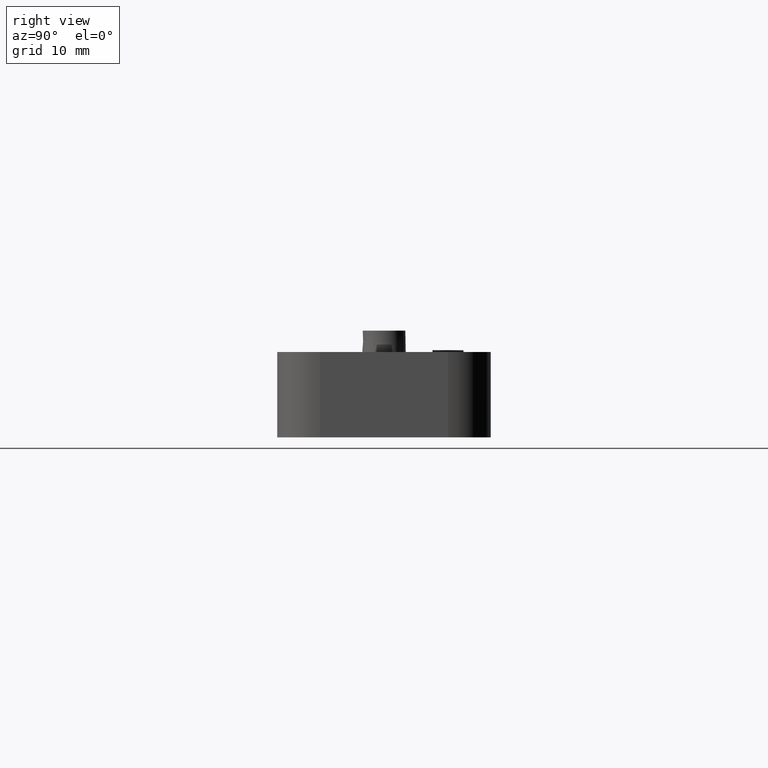
[diagram: clean part render]
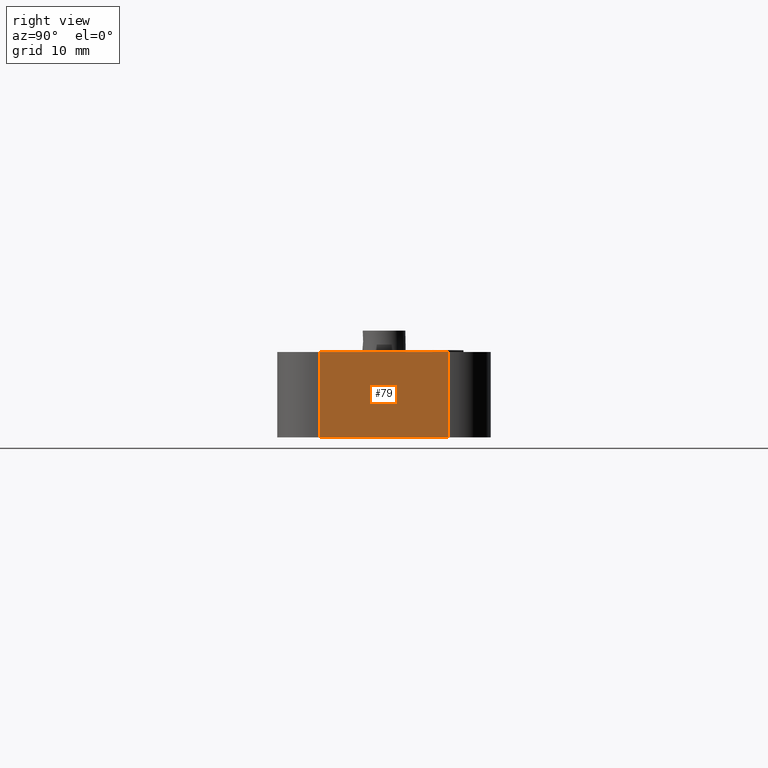
[diagram: same view with one face highlighted and labeled with its STEP entity id]
A machine part, right view. The second image highlights one B-rep face of the part: STEP entity #79.
In plain terms, the highlighted planar face has unit normal (1, 0, 0).
Its self-contained STEP definition (entity closure, byte-faithful):
#79 = ADVANCED_FACE( '', ( #525 ), #526, .T. );
#525 = FACE_OUTER_BOUND( '', #1461, .T. );
#526 = PLANE( '', #1462 );
#1461 = EDGE_LOOP( '', ( #2444, #2445, #2446, #2447 ) );
#1462 = AXIS2_PLACEMENT_3D( '', #2448, #2449, #2450 );
#2444 = ORIENTED_EDGE( '', *, *, #5922, .F. );
#2445 = ORIENTED_EDGE( '', *, *, #5923, .F. );
#2446 = ORIENTED_EDGE( '', *, *, #5894, .T. );
#2447 = ORIENTED_EDGE( '', *, *, #5924, .T. );
#2448 = CARTESIAN_POINT( '', ( 40.5000000000000, 7.50000000000012, 88.7139788967795 ) );
#2449 = DIRECTION( '', ( 1.00000000000000, 1.19313424262403E-030, 1.60751816480227E-016 ) );
#2450 = DIRECTION( '', ( 1.16391049795525E-030, -1.00000000000000, 1.81794180051289E-016 ) );
#5894 = EDGE_CURVE( '', #6995, #7007, #7009, .T. );
#5922 = EDGE_CURVE( '', #7061, #7062, #7063, .T. );
#5923 = EDGE_CURVE( '', #6995, #7061, #7064, .T. );
#5924 = EDGE_CURVE( '', #7007, #7062, #7065, .T. );
#6995 = VERTEX_POINT( '', #8834 );
#7007 = VERTEX_POINT( '', #8849 );
#7009 = LINE( '', #8851, #8852 );
#7061 = VERTEX_POINT( '', #8927 );
#7062 = VERTEX_POINT( '', #8928 );
#7063 = LINE( '', #8929, #8930 );
#7064 = LINE( '', #8931, #8932 );
#7065 = LINE( '', #8933, #8934 );
#8834 = CARTESIAN_POINT( '', ( 40.5000000000000, 7.50000000000012, 9.99999999999998 ) );
#8849 = CARTESIAN_POINT( '', ( 40.5000000000000, -7.49999999999992, 9.99999999999998 ) );
#8851 = CARTESIAN_POINT( '', ( 40.5000000000000, 6.12303176911173E-016, 9.99999999999998 ) );
#8852 = VECTOR( '', #11734, 1000.00000000000 );
#8927 = CARTESIAN_POINT( '', ( 40.5000000000000, 7.50000000000012, -1.43370151904979E-014 ) );
#8928 = CARTESIAN_POINT( '', ( 40.5000000000000, -7.49999999999992, -1.34185604251311E-014 ) );
#8929 = CARTESIAN_POINT( '', ( 40.5000000000000, -1.50631043459002E-029, -1.38777878078145E-014 ) );
#8930 = VECTOR( '', #11770, 1000.00000000000 );
#8931 = CARTESIAN_POINT( '', ( 40.5000000000000, 7.50000000000012, 88.7139788967795 ) );
#8932 = VECTOR( '', #11771, 1000.00000000000 );
#8933 = CARTESIAN_POINT( '', ( 40.5000000000000, -7.49999999999989, 88.7139788967795 ) );
#8934 = VECTOR( '', #11772, 1000.00000000000 );
#11734 = DIRECTION( '', ( 1.18329135783152E-030, -1.00000000000000, 6.12303176911189E-017 ) );
#11770 = DIRECTION( '', ( 1.18329135783152E-030, -1.00000000000000, 6.12303176911189E-017 ) );
#11771 = DIRECTION( '', ( 1.60751816480227E-016, -1.81794180051289E-016, -1.00000000000000 ) );
#11772 = DIRECTION( '', ( 1.60751816480227E-016, -1.81794180051289E-016, -1.00000000000000 ) );